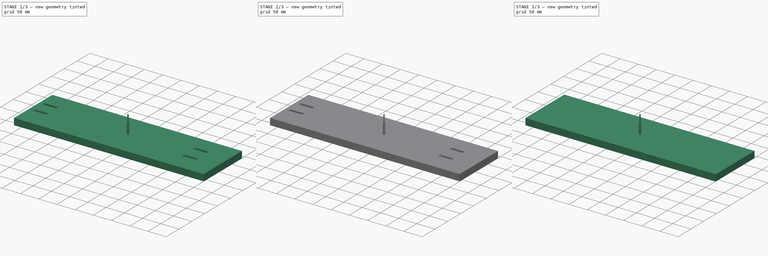
[diagram: build sequence overview — one tinted view per stage of 3, left to right]
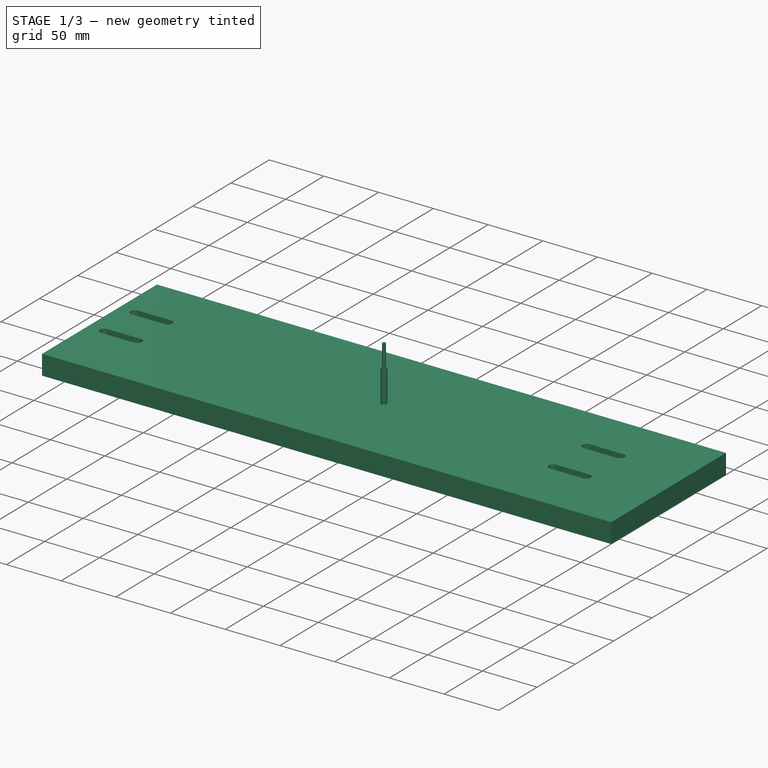
[diagram: stage 1 of 3 — iso view after this stage's code; geometry added in this stage tinted green]
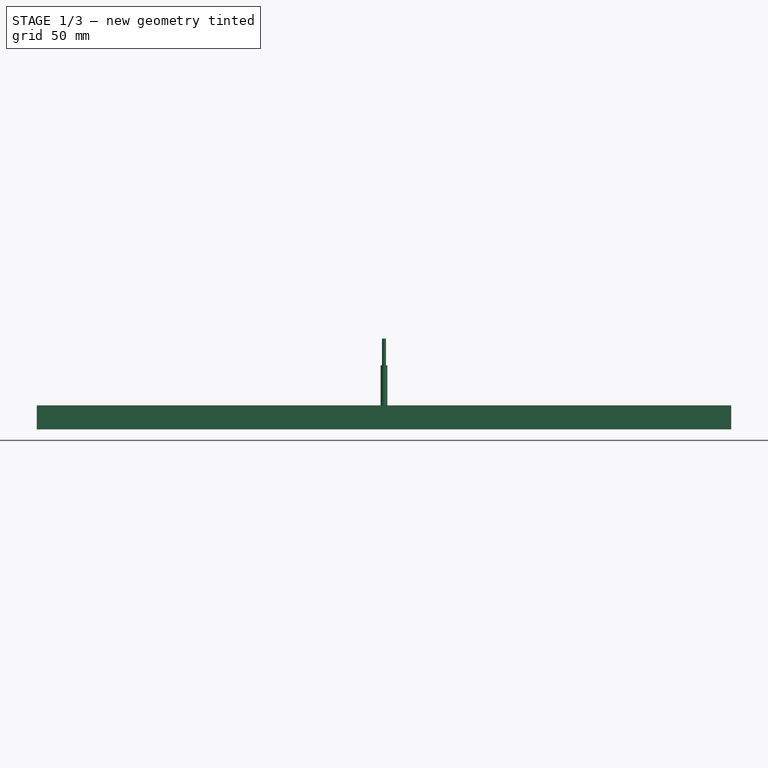
[diagram: stage 1 of 3 — front view after this stage's code; geometry added in this stage tinted green]
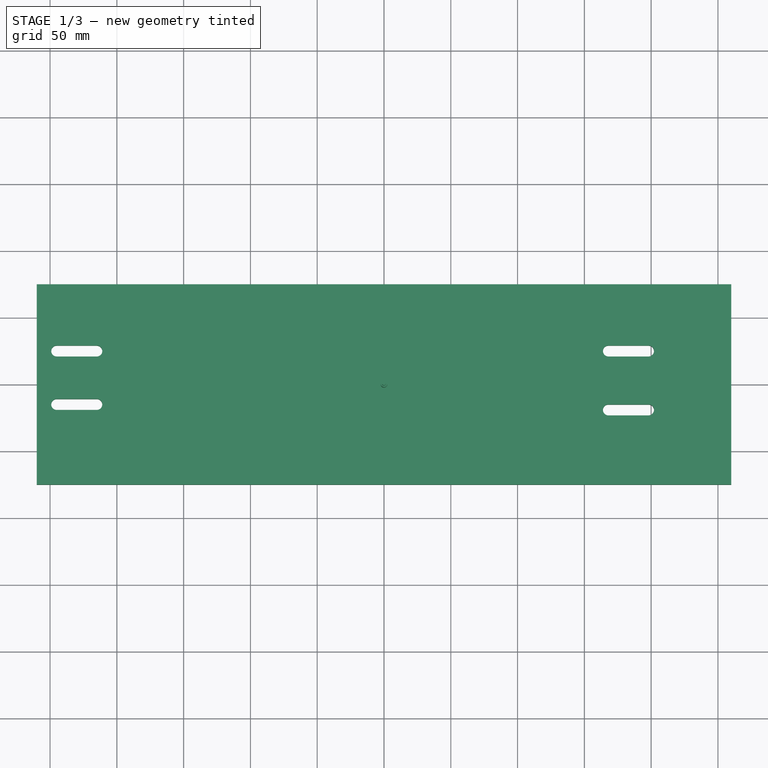
[diagram: stage 1 of 3 — top view after this stage's code; geometry added in this stage tinted green]
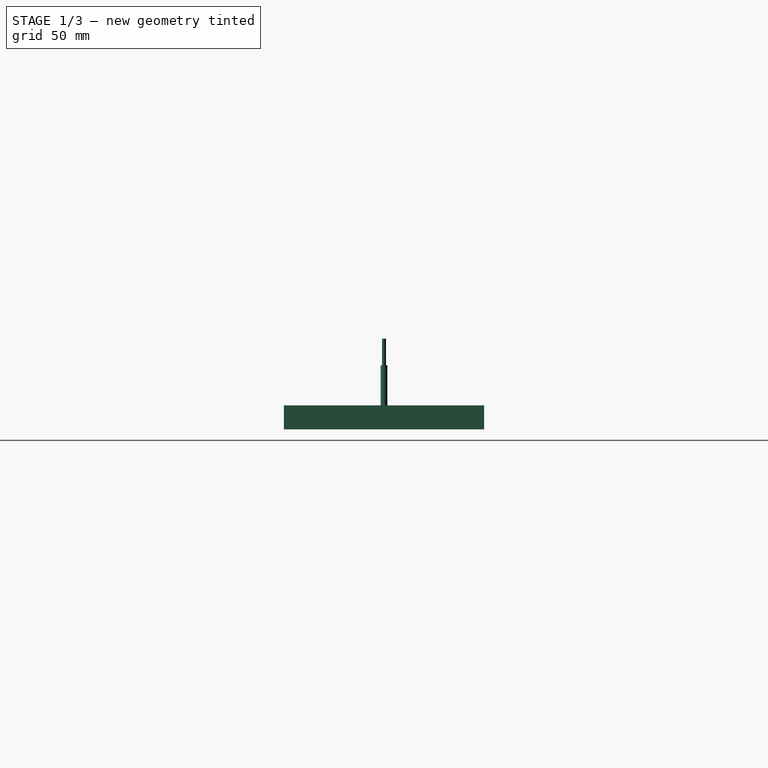
[diagram: stage 1 of 3 — right view after this stage's code; geometry added in this stage tinted green]
FCSTD DOCUMENT  (FreeCAD 1.0R39109 (Git))
Label: Starlink_sprt_main_board
License: All rights reserved
LicenseURL: http://en.wikipedia.org/wiki/All_rights_reserved
objects: Path::FeaturePython×4, Part::FeaturePython×3, App::DocumentObjectGroup×3, Sketcher::SketchObject×2, PartDesign::Pad×1, PartDesign::Pocket×1, PartDesign::Body×1, App::FeaturePython×1
note: 16 computed .brp shape members not serialized (recipe doc carries the construction recipe); baked Part::Feature solids carry a one-line shape summary decoded from their .brp

FEATURE [Sketcher::SketchObject] Sketch
  ArcFitTolerance = 1e-06
  AttachmentSupport = -> [XY_Plane]
  FullyConstrained = true
  MakeInternals = false
  MapMode = 5
  sketch-geometry (21):
    g0: LineSegment StartX=-260 StartY=-75 StartZ=0 EndX=260 EndY=-75 EndZ=0
    g1: LineSegment StartX=260 StartY=-75 StartZ=0 EndX=260 EndY=75 EndZ=0
    g2: LineSegment StartX=260 StartY=75 StartZ=0 EndX=-260 EndY=75 EndZ=0
    g3: LineSegment StartX=-260 StartY=75 StartZ=0 EndX=-260 EndY=-75 EndZ=0
    g4: GeomPoint [constr] X=0 Y=0 Z=0
    g5: ArcOfCircle CenterX=-245 CenterY=25 CenterZ=0 NormalX=0 NormalY=0 NormalZ=1 AngleXU=0 Radius=4.1 StartAngle=1.5708 EndAngle=4.71239
    g6: ArcOfCircle CenterX=-215 CenterY=25 CenterZ=0 NormalX=0 NormalY=0 NormalZ=1 AngleXU=0 Radius=4.1 StartAngle=4.71239 EndAngle=7.85398
    g7: LineSegment StartX=-245 StartY=29.1 StartZ=0 EndX=-215 EndY=29.1 EndZ=0
    g8: LineSegment StartX=-245 StartY=20.9 StartZ=0 EndX=-215 EndY=20.9 EndZ=0
    g9: ArcOfCircle CenterX=-245 CenterY=-15 CenterZ=0 NormalX=0 NormalY=0 NormalZ=1 AngleXU=0 Radius=4.1 StartAngle=1.5708 EndAngle=4.71239
    g10: ArcOfCircle CenterX=-215 CenterY=-15 CenterZ=0 NormalX=0 NormalY=0 NormalZ=1 AngleXU=0 Radius=4.1 StartAngle=4.71239 EndAngle=7.85398
    g11: LineSegment StartX=-245 StartY=-10.9 StartZ=0 EndX=-215 EndY=-10.9 EndZ=0
    g12: LineSegment StartX=-245 StartY=-19.1 StartZ=0 EndX=-215 EndY=-19.1 EndZ=0
    g13: ArcOfCircle CenterX=168 CenterY=25 CenterZ=0 NormalX=0 NormalY=0 NormalZ=1 AngleXU=0 Radius=4.1 StartAngle=1.5708 EndAngle=4.71239
    g14: ArcOfCircle CenterX=198 CenterY=25 CenterZ=0 NormalX=0 NormalY=0 NormalZ=1 AngleXU=0 Radius=4.1 StartAngle=4.71239 EndAngle=7.85398
    g15: LineSegment StartX=168 StartY=29.1 StartZ=0 EndX=198 EndY=29.1 EndZ=0
    g16: LineSegment StartX=168 StartY=20.9 StartZ=0 EndX=198 EndY=20.9 EndZ=0
    g17: ArcOfCircle CenterX=168 CenterY=-19.1 CenterZ=0 NormalX=0 NormalY=0 NormalZ=1 AngleXU=0 Radius=4.1 StartAngle=1.5708 EndAngle=4.71239
    g18: ArcOfCircle CenterX=198 CenterY=-19.1 CenterZ=0 NormalX=0 NormalY=0 NormalZ=1 AngleXU=0 Radius=4.1 StartAngle=4.71239 EndAngle=7.85398
    g19: LineSegment StartX=168 StartY=-15 StartZ=0 EndX=198 EndY=-15 EndZ=0
    g20: LineSegment StartX=168 StartY=-23.2 StartZ=0 EndX=198 EndY=-23.2 EndZ=0
  constraints (52):
    c: Coincident(g0,g1)
    c: Coincident(g1,g2)
    c: Coincident(g2,g3)
    c: Coincident(g3,g0)
    c: Horizontal(g0)
    c: Horizontal(g2)
    c: Vertical(g1)
    c: Vertical(g3)
    c: Symmetric(g2,g0,g4)
    c: Distance(g1,g3) = 520
    c: Distance(g0,g2) = 150
    c: Coincident(g4,g-1)
    c: Tangent(g5,g7) = 1.5708
    c: Tangent(g5,g8) = -1.5708
    c: Tangent(g6,g7) = 1.5708
    c: Tangent(g6,g8) = -1.5708
    c: Equal(g5,g6)
    c: Horizontal(g8)
    c: Radius(g5) = 4.1
    c: Tangent(g9,g11) = 1.5708
    c: Tangent(g9,g12) = -1.5708
    c: Tangent(g10,g11) = 1.5708
    c: Tangent(g10,g12) = -1.5708
    c: Equal(g9,g10)
    c: Radius(g9) = 4.1
    c: Horizontal(g11)
    c: Tangent(g13,g15) = 1.5708
    c: Tangent(g13,g16) = -1.5708
    c: Tangent(g14,g15) = 1.5708
    c: Tangent(g14,g16) = -1.5708
    c: Equal(g13,g14)
    c: Horizontal(g16)
    c: Radius(g13) = 4.1
    c: Tangent(g17,g19) = 1.5708
    c: Tangent(g17,g20) = -1.5708
    c: Tangent(g18,g19) = 1.5708
    c: Tangent(g18,g20) = -1.5708
    c: Equal(g17,g18)
    c: Horizontal(g20)
    c: Radius(g17) = 4.1
    c: DistanceX(g2,g5) = 15
    c: DistanceY(g5,g2) = 50
    c: DistanceX(g5,g6) = 30
    c: Vertical(g5,g9)
    c: DistanceX(g9,g10) = 30
    c: DistanceY(g9,g5) = 40
    c: DistanceX(g13,g14) = 30
    c: DistanceX(g17,g18) = 30
    c: Vertical(g13,g17)
    c: DistanceX(g5,g13) = 413
    c: Horizontal(g5,g13)
    c: Horizontal(g9,g17)
FEATURE [PartDesign::Pad] Pad
  Direction = (0,0,1)
  Length = 18
  Length2 = 10
  Profile = -> Sketch
  ReferenceAxis = -> Sketch [N_Axis]
  Refine = true
  Reversed = true
  Suppressed = false
  Type = 0
FEATURE [Part::FeaturePython] ToolBit001  label="5mm Endmill"  # Path/CAM toolbit (typed FeaturePython)
  BitPropertyNames = Chipload | CuttingEdgeHeight | Diameter | Flutes | Length | Material | ShankDiameter | SpindleDirection
  BitShape = <path>
  Chipload = 0
  CuttingEdgeHeight = 30
  Diameter = 5
  File = <path>
  Flutes = 0
  Length = 50
  Material = 0
  ShankDiameter = 3
  ShapeName = endmill
  SpindleDirection = 0
FEATURE [Path::FeaturePython] _mm_Endmill  label="5mm Endmill001"  # Path/CAM operation (typed FeaturePython)
  HorizFeed = 6.66667
  HorizRapid = 0
  SpindleDir = 0
  SpindleSpeed = 10000
  Tool = -> ToolBit001
  ToolNumber = 2
  VertFeed = 3.33333
  VertRapid = 0
  expr: HorizRapid = SetupSheet.HorizRapid
  expr: VertRapid = SetupSheet.VertRapid
FEATURE [App::DocumentObjectGroup] Tools
  Group = -> [_mm_Endmill]
FEATURE [Path::FeaturePython] Adaptive  # Path/CAM operation (typed FeaturePython)
  Active = true
  Base = -> [Clone]
  ClearanceHeight = 5
  CoolantMode = 0
  CycleTime = 00:13:31
  ExtensionCorners = true
  ExtensionLengthDefault = 2.5
  FinalDepth = -9
  FinishDepth = 0
  FinishingProfile = true
  ForceInsideOut = true
  HelixAngle = 5
  HelixConeAngle = 0
  HelixDiameterLimit = 2
  KeepToolDownRatio = 3
  LiftDistance = 0
  OpFinalDepth = -9
  OpStartDepth = 6.39e-14
  OpStockZMax = 6.39e-14
  OpStockZMin = -18
  OpToolDiameter = 5
  OperationType = 0
  SafeHeight = 3
  Side = 1
  StartDepth = 6.39e-14
  StepDown = 10
  StepOver = 30
  StockToLeave = 0
  StopProcessing = false
  Stopped = false
  Tolerance = 0.1
  ToolController = -> _mm_Endmill
  UseHelixArcs = false
  UseOutline = false
  expr: ClearanceHeight = OpStockZMax + SetupSheet.ClearanceHeightOffset
  expr: ExtensionLengthDefault = OpToolDiameter / 2
  expr: FinalDepth = OpFinalDepth
  expr: SafeHeight = OpStockZMax + SetupSheet.SafeHeightOffset
  expr: StartDepth = OpStartDepth
  expr: StepDown = OpToolDiameter * 2
FEATURE [Path::FeaturePython] Adaptive001  # Path/CAM operation (typed FeaturePython)
  Active = true
  Base = -> [Clone]
  ClearanceHeight = 5
  CoolantMode = 0
  CycleTime = 00:09:36
  ExtensionCorners = true
  ExtensionLengthDefault = 2.5
  FinalDepth = -18
  FinishDepth = 0
  FinishingProfile = true
  ForceInsideOut = true
  HelixAngle = 5
  HelixConeAngle = 0
  HelixDiameterLimit = 2
  KeepToolDownRatio = 3
  LiftDistance = 0
  OpFinalDepth = -18
  OpStartDepth = 6.39e-14
  OpStockZMax = 6.39e-14
  OpStockZMin = -18
  OpToolDiameter = 5
  OperationType = 0
  SafeHeight = 3
  Side = 1
  StartDepth = -9
  StepDown = 10
  StepOver = 30
  StockToLeave = 0
  StopProcessing = false
  Stopped = false
  Tolerance = 0.1
  ToolController = -> _mm_Endmill
  UseHelixArcs = false
  UseOutline = false
  expr: ClearanceHeight = OpStockZMax + SetupSheet.ClearanceHeightOffset
  expr: ExtensionLengthDefault = OpToolDiameter / 2
  expr: SafeHeight = OpStockZMax + SetupSheet.SafeHeightOffset
  expr: StepDown = OpToolDiameter * 2
FEATURE [App::DocumentObjectGroup] Operations
  Group = -> [Adaptive,Adaptive001]
FEATURE [Path::FeaturePython] Job  # Path/CAM operation (typed FeaturePython)
  CycleTime = 00:23:07
  Fixtures = G54
  GeometryTolerance = 0.01
  JobType = 0
  Model = -> Model
  Operations = -> Operations
  OrderOutputBy = 0
  PostProcessor = 11
  PostProcessorArgs = --bcnc
  PostProcessorOutputFile = %D/%d
  SetupSheet = -> SetupSheet
  SplitOutput = false
  Stock = -> Stock
  Tools = -> Tools
note: 2 file-system paths scrubbed to <path> (originals preserved in the JSON sidecar)
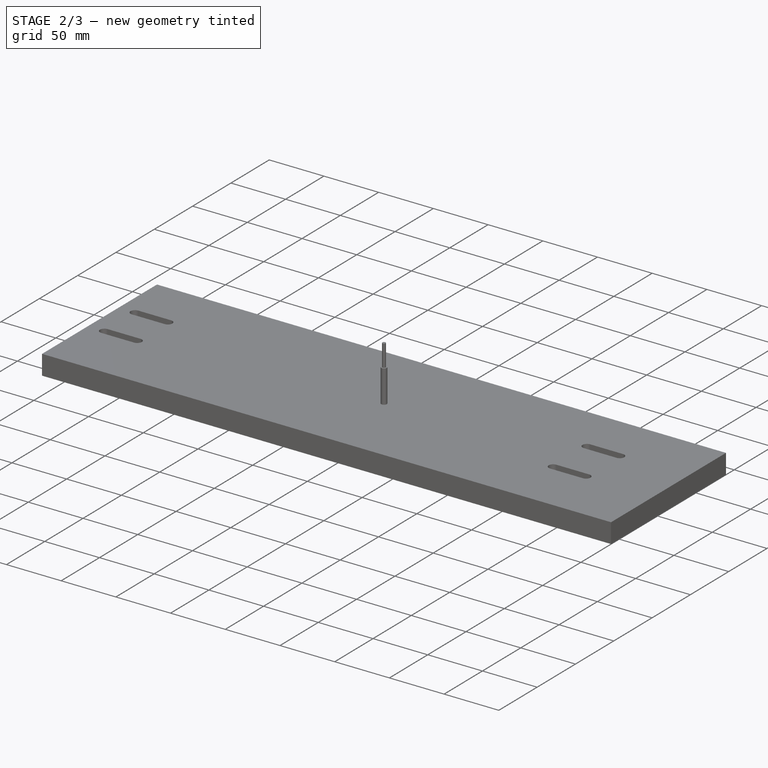
[diagram: stage 2 of 3 — iso view after this stage's code; geometry added in this stage tinted green]
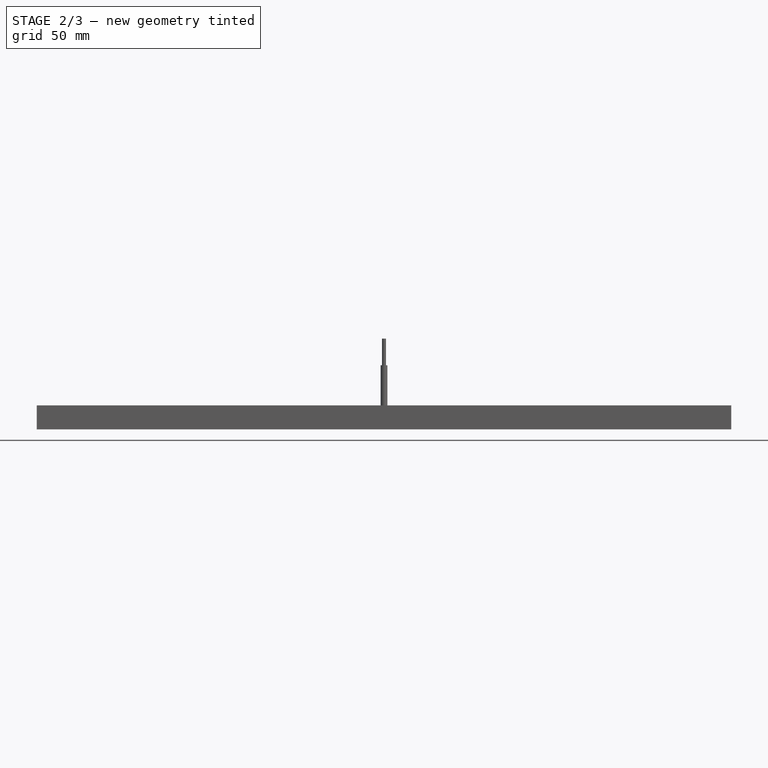
[diagram: stage 2 of 3 — front view after this stage's code; geometry added in this stage tinted green]
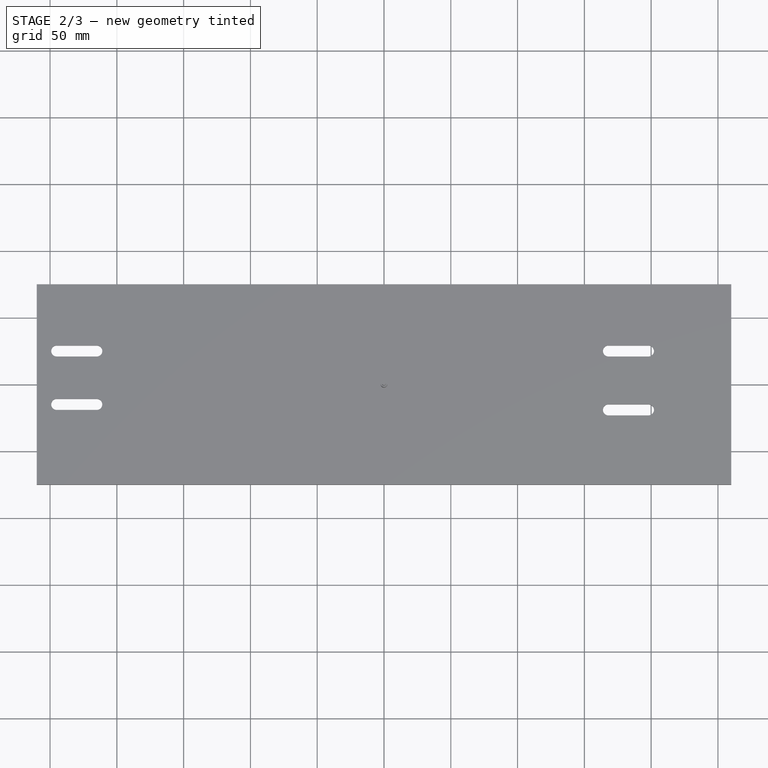
[diagram: stage 2 of 3 — top view after this stage's code; geometry added in this stage tinted green]
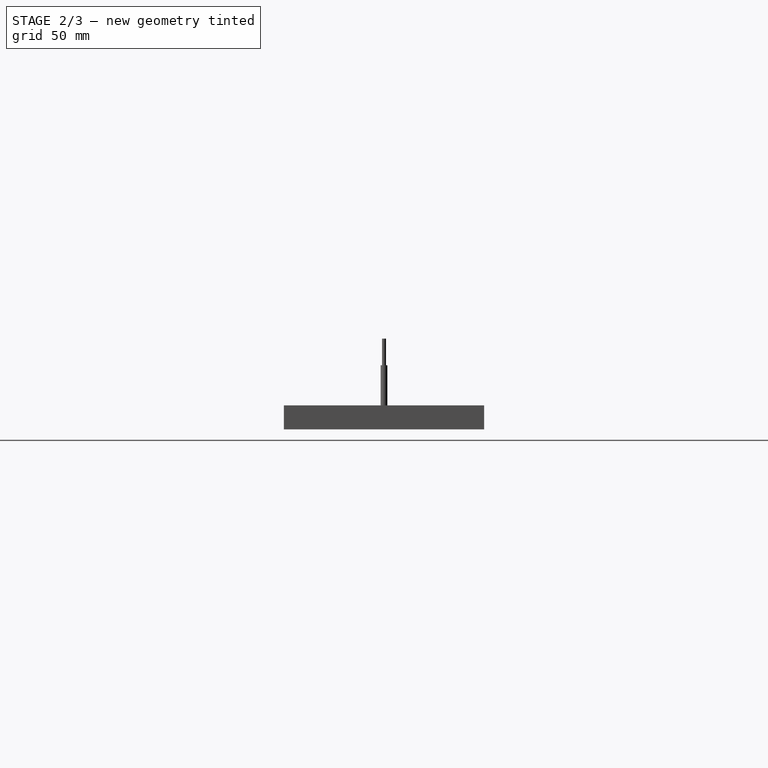
[diagram: stage 2 of 3 — right view after this stage's code; geometry added in this stage tinted green]
FEATURE [Sketcher::SketchObject] Sketch001
  ArcFitTolerance = 1e-06
  AttachmentSupport = -> [Pad]
  ExternalGeometry = -> [Pad]
  FullyConstrained = false
  MakeInternals = false
  MapMode = 5
  Placement = pos=(0,0,-18) rot=(1,0,0;3.14159rad)
  sketch-geometry (16):
    g0: ArcOfCircle CenterX=-245 CenterY=15 CenterZ=0 NormalX=0 NormalY=0 NormalZ=1 AngleXU=0 Radius=7 StartAngle=1.5708 EndAngle=4.71239
    g1: ArcOfCircle CenterX=-215 CenterY=15 CenterZ=0 NormalX=0 NormalY=0 NormalZ=1 AngleXU=0 Radius=7 StartAngle=4.71239 EndAngle=7.85398
    g2: LineSegment StartX=-245 StartY=22 StartZ=0 EndX=-215 EndY=22 EndZ=0
    g3: LineSegment StartX=-245 StartY=8 StartZ=0 EndX=-215 EndY=8 EndZ=0
    g4: ArcOfCircle CenterX=-245 CenterY=-25 CenterZ=0 NormalX=0 NormalY=0 NormalZ=1 AngleXU=0 Radius=7 StartAngle=1.5708 EndAngle=4.71239
    g5: ArcOfCircle CenterX=-215 CenterY=-25 CenterZ=0 NormalX=0 NormalY=0 NormalZ=1 AngleXU=0 Radius=7 StartAngle=4.71239 EndAngle=7.85398
    g6: LineSegment StartX=-245 StartY=-18 StartZ=0 EndX=-215 EndY=-18 EndZ=0
    g7: LineSegment StartX=-245 StartY=-32 StartZ=0 EndX=-215 EndY=-32 EndZ=0
    g8: ArcOfCircle CenterX=168 CenterY=19.1 CenterZ=0 NormalX=0 NormalY=0 NormalZ=1 AngleXU=0 Radius=7 StartAngle=1.5708 EndAngle=4.71239
    g9: ArcOfCircle CenterX=198 CenterY=19.1 CenterZ=0 NormalX=0 NormalY=0 NormalZ=1 AngleXU=0 Radius=7 StartAngle=4.71239 EndAngle=7.85398
    g10: LineSegment StartX=168 StartY=26.1 StartZ=0 EndX=198 EndY=26.1 EndZ=0
    g11: LineSegment StartX=168 StartY=12.1 StartZ=0 EndX=198 EndY=12.1 EndZ=0
    g12: ArcOfCircle CenterX=168 CenterY=-25 CenterZ=0 NormalX=0 NormalY=0 NormalZ=1 AngleXU=0 Radius=7 StartAngle=1.5708 EndAngle=4.71239
    g13: ArcOfCircle CenterX=198 CenterY=-25 CenterZ=0 NormalX=0 NormalY=0 NormalZ=1 AngleXU=0 Radius=7 StartAngle=4.71239 EndAngle=7.85398
    g14: LineSegment StartX=168 StartY=-18 StartZ=0 EndX=198 EndY=-18 EndZ=0
    g15: LineSegment StartX=168 StartY=-32 StartZ=0 EndX=198 EndY=-32 EndZ=0
  constraints (24):
    c: Tangent(g0,g2) = 1.5708
    c: Tangent(g0,g3) = -1.5708
    c: Tangent(g1,g2) = 1.5708
    c: Tangent(g1,g3) = -1.5708
    c: Equal(g0,g1)
    c: Horizontal(g3)
    c: Tangent(g4,g6) = 1.5708
    c: Tangent(g4,g7) = -1.5708
    c: Tangent(g5,g6) = 1.5708
    c: Tangent(g5,g7) = -1.5708
    c: Equal(g4,g5)
    c: Horizontal(g7)
    c: Tangent(g8,g10) = 1.5708
    c: Tangent(g8,g11) = -1.5708
    c: Tangent(g9,g10) = 1.5708
    c: Tangent(g9,g11) = -1.5708
    c: Equal(g8,g9)
    c: Horizontal(g11)
    c: Tangent(g12,g14) = 1.5708
    c: Tangent(g12,g15) = -1.5708
    c: Tangent(g13,g14) = 1.5708
    c: Tangent(g13,g15) = -1.5708
    c: Equal(g12,g13)
    c: Horizontal(g15)
FEATURE [PartDesign::Pocket] Pocket
  BaseFeature = -> Pad
  Direction = (0,0,1)
  Length = 9
  Length2 = 5
  Profile = -> Sketch001
  ReferenceAxis = -> Sketch001 [N_Axis]
  Refine = true
  Suppressed = false
  Type = 0
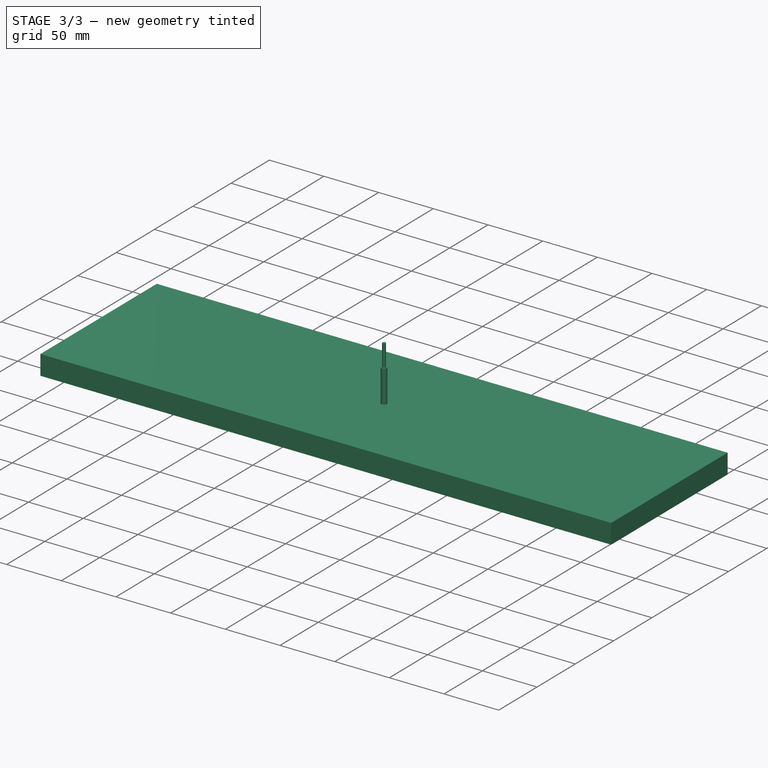
[diagram: stage 3 of 3 — iso view after this stage's code; geometry added in this stage tinted green]
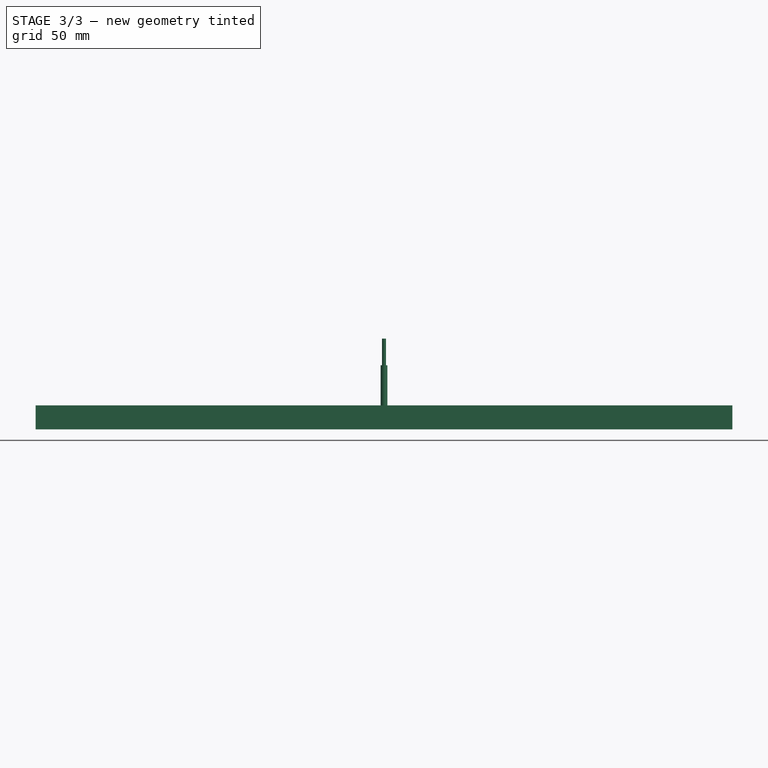
[diagram: stage 3 of 3 — front view after this stage's code; geometry added in this stage tinted green]
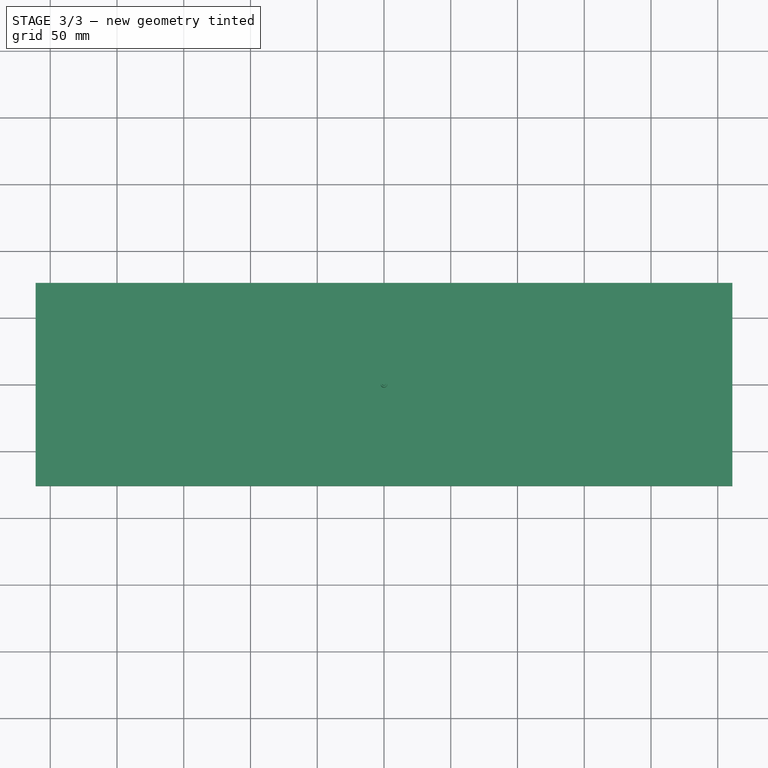
[diagram: stage 3 of 3 — top view after this stage's code; geometry added in this stage tinted green]
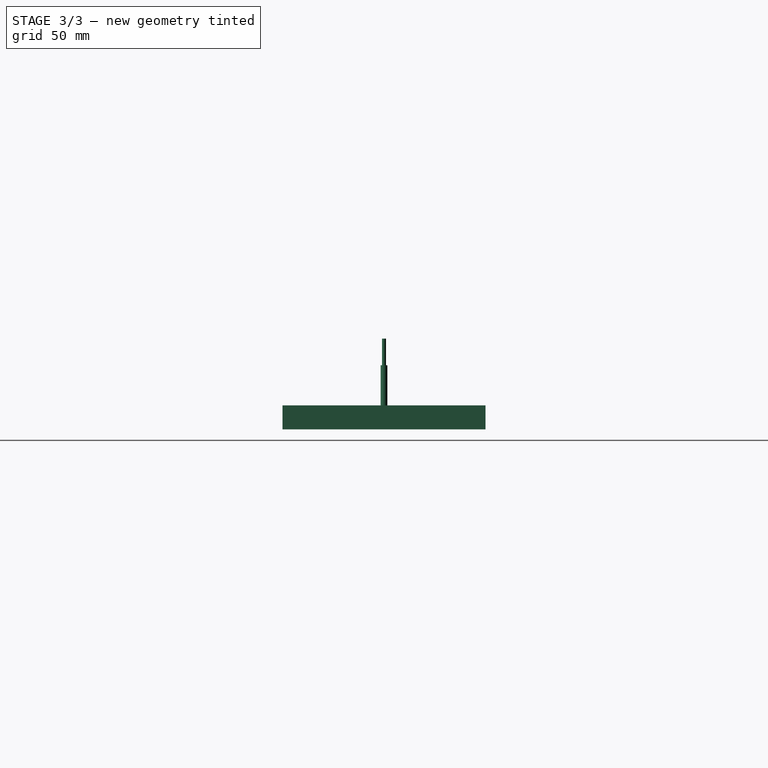
[diagram: stage 3 of 3 — right view after this stage's code; geometry added in this stage tinted green]
FEATURE [PartDesign::Body] Body  label="Тіло"
  AllowCompound = false
  Group = -> [Sketch,Pad,Sketch001,Pocket]
  Origin = -> Origin
  Tip = -> Pocket
FEATURE [App::FeaturePython] SetupSheet  # Path/CAM operation (typed FeaturePython)
  ClearanceHeightExpression = OpStockZMax+SetupSheet.ClearanceHeightOffset
  ClearanceHeightOffset = 5
  CoolantMode = 0
  CoolantModes = None | Flood | Mist
  FinalDepthExpression = OpFinalDepth
  HorizRapid = 0
  SafeHeightExpression = OpStockZMax+SetupSheet.SafeHeightOffset
  SafeHeightOffset = 3
  StartDepthExpression = OpStartDepth
  StepDownExpression = OpToolDiameter
  VertRapid = 0
FEATURE [Part::FeaturePython] Clone  label="Model-Тіло"  # Draft clone (typed FeaturePython)
  AttacherType = Attacher::AttachEngine3D
  Fuse = false
  Objects = -> [Body]
  PathResource = Model
  Placement = pos=(0,0,-18) rot=(0,-1,0;3.14159rad)
  Scale = (1,1,1)
FEATURE [App::DocumentObjectGroup] Model
  Group = -> [Clone]
FEATURE [Part::FeaturePython] Stock  # WARN: FeaturePython — macro-defined, semantics opaque (R4)
  Base = -> Model
  ExtXneg = 1
  ExtXpos = 1
  ExtYneg = 1
  ExtYpos = 1
  ExtZneg = 0
  ExtZpos = 0
  Placement = pos=(-260,-75,-18) rot=(0,0,1;0rad)
  StockType = FromBase
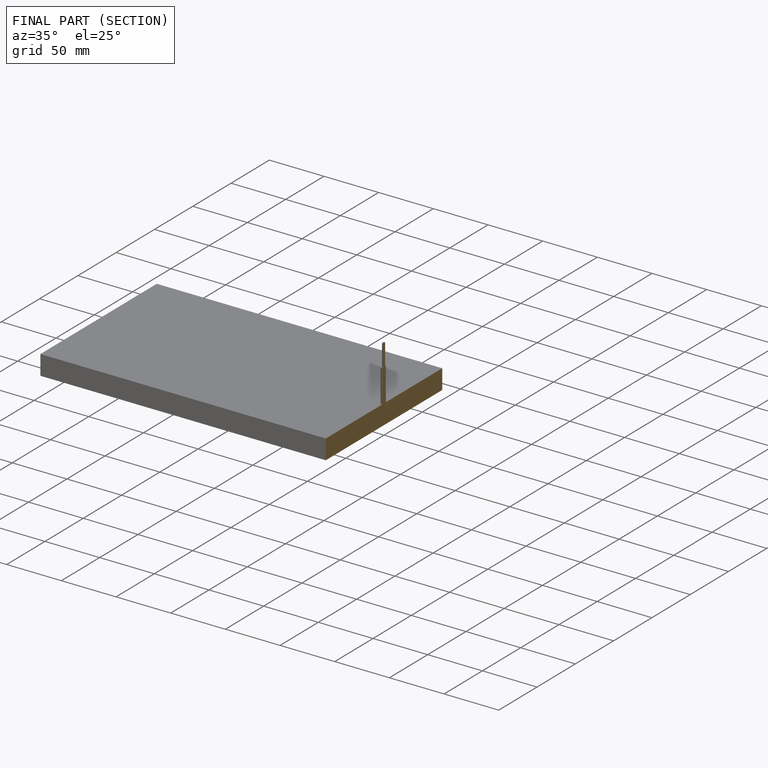
[diagram: finished part — half-section view (interior)]
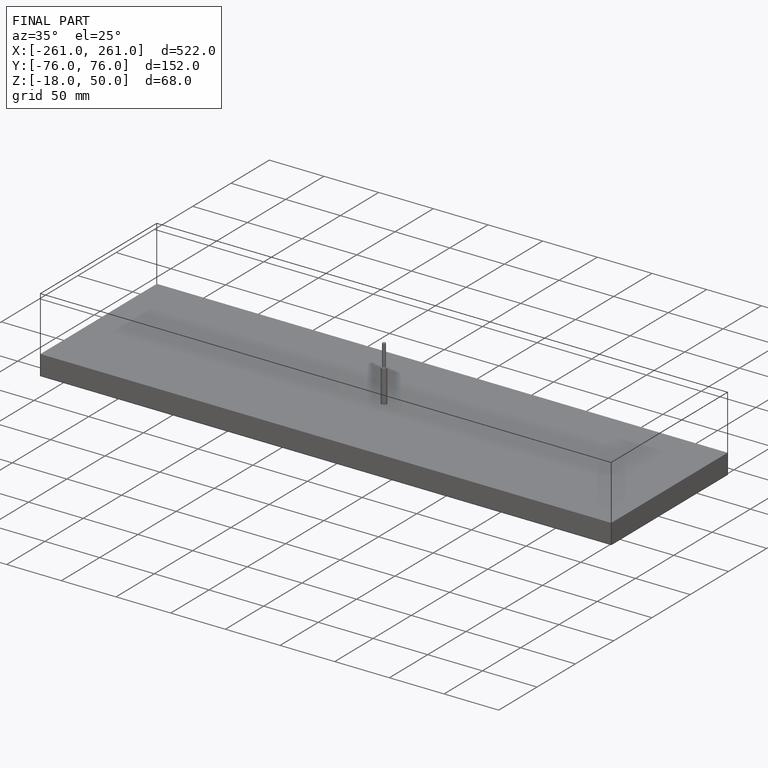
[diagram: finished part — iso view with bounding-box wireframe]
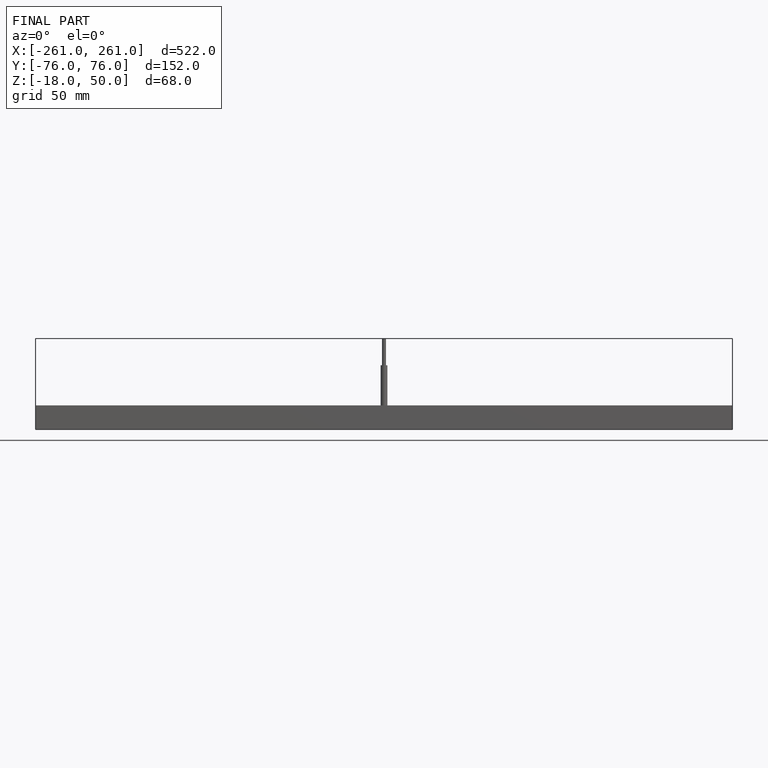
[diagram: finished part — front view with bounding-box wireframe]
